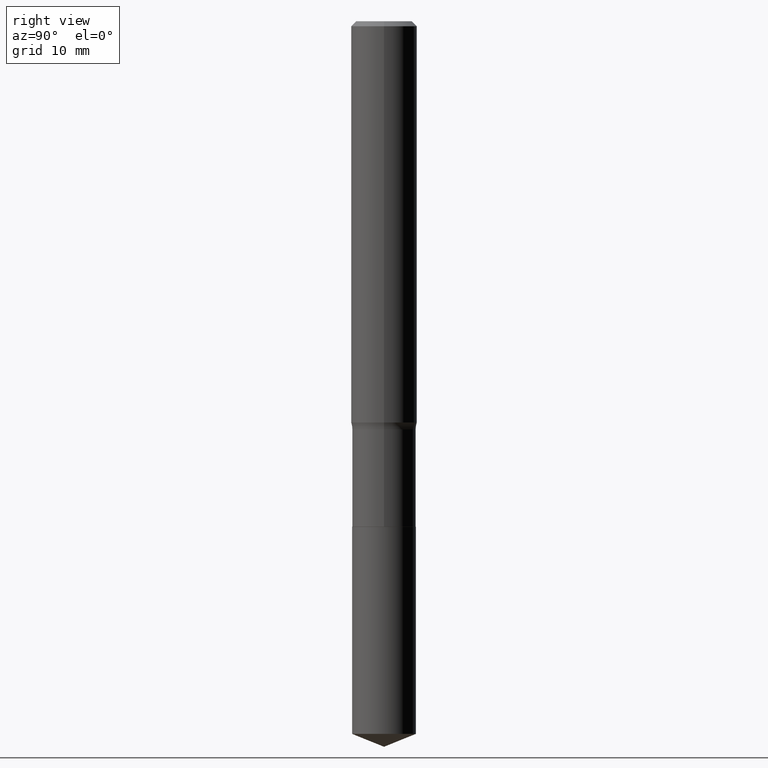
[diagram: clean part render]
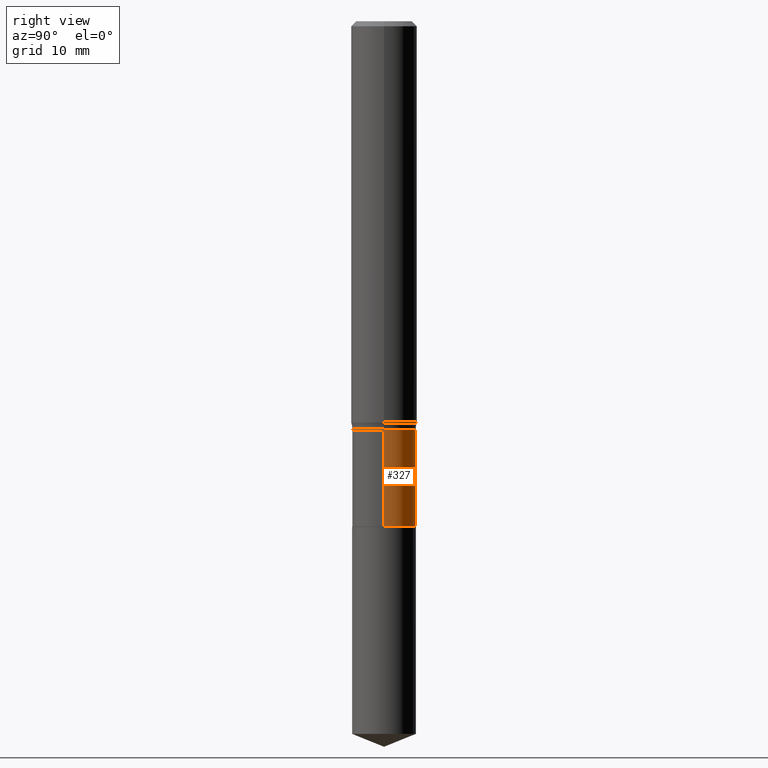
[diagram: same view with one face highlighted and labeled with its STEP entity id]
A machine part, right view. The second image highlights one B-rep face of the part: STEP entity #327.
In plain terms, the highlighted cylindrical surface (edge-blend (fillet) strip) has radius 2.8994 mm, axis along (-0, 0, 1).
Its self-contained STEP definition (entity closure, byte-faithful):
#10 = CARTESIAN_POINT ( 'NONE',  ( 4.427521273598189436E-29, -6.321326963975514491E-15, -1.810499999999999998 ) ) ;
#17 = AXIS2_PLACEMENT_3D ( 'NONE', #92, #156, #42 ) ;
#20 = DIRECTION ( 'NONE',  ( -2.445468806185136877E-29, 3.491481338843145188E-15, 1.000000000000000000 ) ) ;
#42 = DIRECTION ( 'NONE',  ( 1.000000000000000000, -6.982962677686266711E-15, 4.876176775795935793E-29 ) ) ;
#62 = CARTESIAN_POINT ( 'NONE',  ( 0.1141499999999999598, -7.971051896578870271E-16, 5.566155789571058785E-30 ) ) ;
#66 = AXIS2_PLACEMENT_3D ( 'NONE', #152, #181, #339 ) ;
#75 = EDGE_CURVE ( 'NONE', #91, #199, #288, .T. ) ;
#79 = VECTOR ( 'NONE', #20, 39.37007874015748143 ) ;
#91 = VERTEX_POINT ( 'NONE', #219 ) ;
#92 = CARTESIAN_POINT ( 'NONE',  ( 0.000000000000000000, 0.000000000000000000, 0.000000000000000000 ) ) ;
#94 = ORIENTED_EDGE ( 'NONE', *, *, #185, .F. ) ;
#127 = CARTESIAN_POINT ( 'NONE',  ( 0.1141499999999999460, -5.900952610778795922E-15, -1.461799999999999766 ) ) ;
#147 = CARTESIAN_POINT ( 'NONE',  ( -0.1141499999999999598, 8.110845328701540768E-16, -5.614964405525973270E-30 ) ) ;
#152 = CARTESIAN_POINT ( 'NONE',  ( 3.574786300881431790E-29, -5.103847421120908993E-15, -1.461799999999999766 ) ) ;
#156 = DIRECTION ( 'NONE',  ( -2.445468806185136597E-29, 3.491481338843145583E-15, 1.000000000000000000 ) ) ;
#174 = VECTOR ( 'NONE', #376, 39.37007874015748143 ) ;
#181 = DIRECTION ( 'NONE',  ( -2.445468806185136597E-29, 3.491481338843145583E-15, 1.000000000000000000 ) ) ;
#185 = EDGE_CURVE ( 'NONE', #389, #199, #461, .T. ) ;
#199 = VERTEX_POINT ( 'NONE', #218 ) ;
#218 = CARTESIAN_POINT ( 'NONE',  ( -0.1141499999999999460, -4.901502659678057961E-15, -1.461799999999999766 ) ) ;
#219 = CARTESIAN_POINT ( 'NONE',  ( -0.1141499999999999737, -4.901502659678057961E-15, -1.810499999999999998 ) ) ;
#241 = ORIENTED_EDGE ( 'NONE', *, *, #274, .T. ) ;
#256 = AXIS2_PLACEMENT_3D ( 'NONE', #10, #276, #282 ) ;
#274 = EDGE_CURVE ( 'NONE', #292, #91, #479, .T. ) ;
#276 = DIRECTION ( 'NONE',  ( -2.445468806185136597E-29, 3.491481338843145583E-15, 1.000000000000000000 ) ) ;
#282 = DIRECTION ( 'NONE',  ( 1.000000000000000000, -6.982962677686264344E-15, 0.000000000000000000 ) ) ;
#283 = ORIENTED_EDGE ( 'NONE', *, *, #367, .F. ) ;
#288 = LINE ( 'NONE', #147, #174 ) ;
#292 = VERTEX_POINT ( 'NONE', #428 ) ;
#327 = ADVANCED_FACE ( 'NONE', ( #356 ), #465, .T. ) ;
#339 = DIRECTION ( 'NONE',  ( 1.000000000000000000, -6.982962677686268288E-15, 0.000000000000000000 ) ) ;
#356 = FACE_OUTER_BOUND ( 'NONE', #360, .T. ) ;
#360 = EDGE_LOOP ( 'NONE', ( #241, #474, #94, #283 ) ) ;
#367 = EDGE_CURVE ( 'NONE', #292, #389, #468, .T. ) ;
#376 = DIRECTION ( 'NONE',  ( -2.445468806185136877E-29, 3.491481338843145188E-15, 1.000000000000000000 ) ) ;
#389 = VERTEX_POINT ( 'NONE', #127 ) ;
#428 = CARTESIAN_POINT ( 'NONE',  ( 0.1141500000000000015, -7.118432153633402209E-15, -1.810499999999999998 ) ) ;
#461 = CIRCLE ( 'NONE', #66, 0.1141499999999999460 ) ;
#465 = CYLINDRICAL_SURFACE ( 'NONE', #17, 0.1141499999999999598 ) ;
#468 = LINE ( 'NONE', #62, #79 ) ;
#474 = ORIENTED_EDGE ( 'NONE', *, *, #75, .T. ) ;
#479 = CIRCLE ( 'NONE', #256, 0.1141500000000000015 ) ;